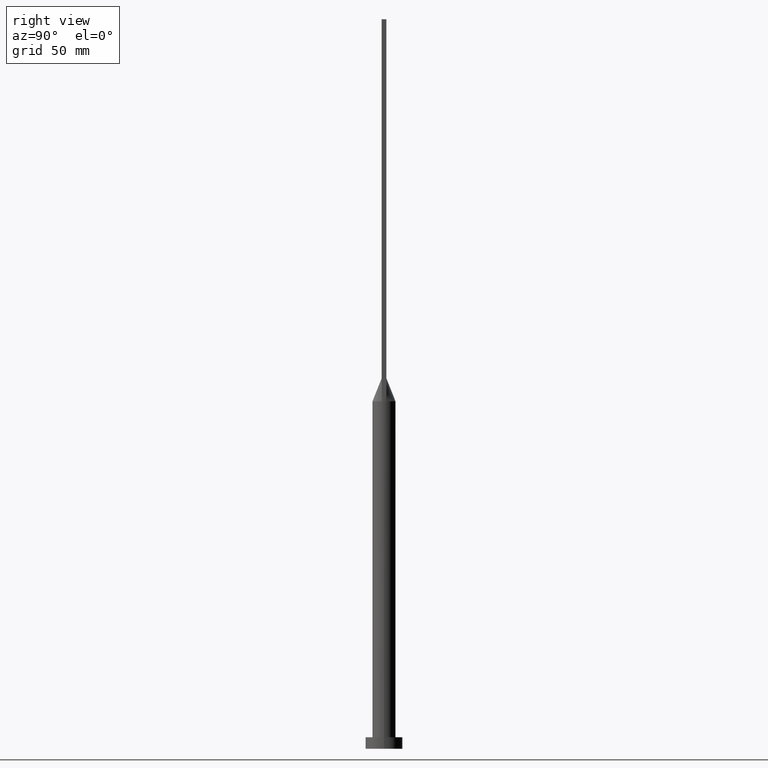
[diagram: clean part render]
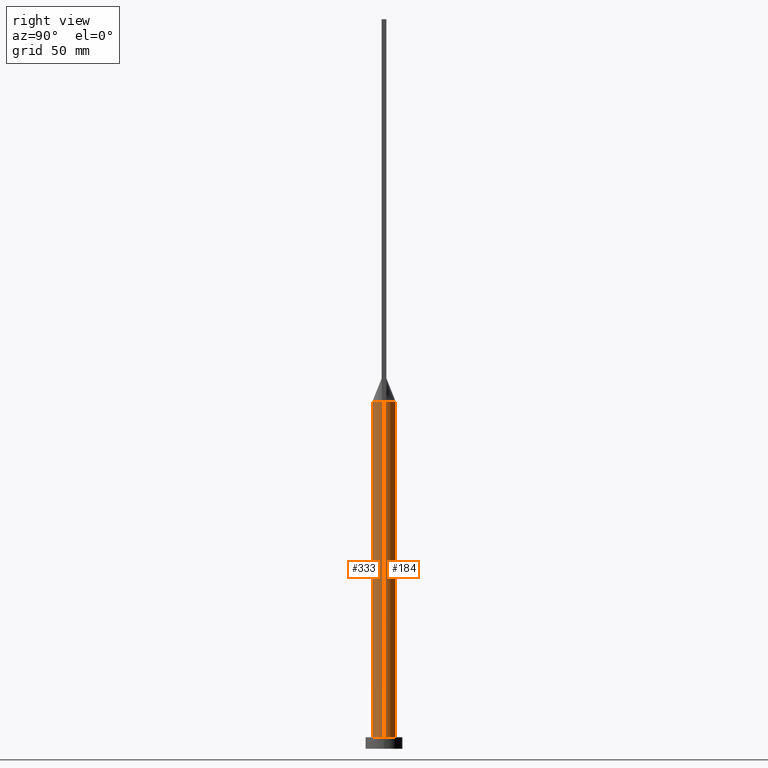
[diagram: same view with one multi-face feature highlighted, each face labeled with its STEP entity id]
A machine part, right view. The highlighted faces form ONE feature: a constant-radius fillet chain: 2 tangent blend faces with common blend radius 5 mm. The faces share edges in the B-rep.
Their STEP definitions:
[1] entity #184 (Cylinder):
#8 = CARTESIAN_POINT ( 'NONE',  ( -2.546422404201597711, 4.351724242187074765, 150.0000000000000284 ) ) ;
#10 = CIRCLE ( 'NONE', #54, 5.000000000000000000 ) ;
#11 = CARTESIAN_POINT ( 'NONE',  ( 4.667610010780610885, 1.859271532507960289, 150.0000000000000284 ) ) ;
#15 = CARTESIAN_POINT ( 'NONE',  ( -1.331739278681919991, 4.830988864699813590, 149.9999999999999432 ) ) ;
#18 = AXIS2_PLACEMENT_3D ( 'NONE', #530, #567, #582 ) ;
#54 = AXIS2_PLACEMENT_3D ( 'NONE', #58, #248, #56 ) ;
#56 = DIRECTION ( 'NONE',  ( 1.000000000000000000, 0.000000000000000000, 0.000000000000000000 ) ) ;
#58 = CARTESIAN_POINT ( 'NONE',  ( 0.000000000000000000, 0.000000000000000000, 150.0000000000000000 ) ) ;
#61 = VERTEX_POINT ( 'NONE', #347 ) ;
#62 = CARTESIAN_POINT ( 'NONE',  ( 5.000000000000000000, 6.123233995736766282E-16, 150.0000000000000000 ) ) ;
#87 = CARTESIAN_POINT ( 'NONE',  ( 4.808752461626938590, 1.429035605956548549, 150.0000000000000000 ) ) ;
#88 = EDGE_CURVE ( 'NONE', #406, #98, #514, .T. ) ;
#98 = VERTEX_POINT ( 'NONE', #337 ) ;
#102 = CARTESIAN_POINT ( 'NONE',  ( -4.808752461626937702, 1.429035605956548771, 150.0000000000000000 ) ) ;
#106 = CARTESIAN_POINT ( 'NONE',  ( 3.067114325249248097, 3.991228734590925864, 150.0000000000000568 ) ) ;
#111 = LINE ( 'NONE', #488, #336 ) ;
#134 = CARTESIAN_POINT ( 'NONE',  ( -1.649264041307594963, 4.731318088779739917, 149.9999999999999716 ) ) ;
#144 = CARTESIAN_POINT ( 'NONE',  ( 4.214142381859630859, 2.735777372109855943, 150.0000000000000568 ) ) ;
#149 = FACE_OUTER_BOUND ( 'NONE', #217, .T. ) ;
#155 = DIRECTION ( 'NONE',  ( 1.000000000000000000, 0.000000000000000000, 0.000000000000000000 ) ) ;
#159 = DIRECTION ( 'NONE',  ( -0.000000000000000000, -0.000000000000000000, -1.000000000000000000 ) ) ;
#160 = DIRECTION ( 'NONE',  ( 0.000000000000000000, 0.000000000000000000, 1.000000000000000000 ) ) ;
#180 = VERTEX_POINT ( 'NONE', #376 ) ;
#183 = ORIENTED_EDGE ( 'NONE', *, *, #463, .F. ) ;
#184 = ADVANCED_FACE ( 'NONE', ( #149 ), #205, .T. ) ;
#193 = CARTESIAN_POINT ( 'NONE',  ( -3.900093280396789819, 3.182195704254724422, 150.0000000000000000 ) ) ;
#195 = AXIS2_PLACEMENT_3D ( 'NONE', #578, #159, #334 ) ;
#196 = CARTESIAN_POINT ( 'NONE',  ( -3.067114325249248097, 3.991228734590924976, 150.0000000000000284 ) ) ;
#205 = CYLINDRICAL_SURFACE ( 'NONE', #195, 5.000000000000000000 ) ;
#217 = EDGE_LOOP ( 'NONE', ( #183, #561, #452, #569, #536, #362 ) ) ;
#228 = CARTESIAN_POINT ( 'NONE',  ( 4.892748924933744803, 1.030052405249211045, 150.0000000000000000 ) ) ;
#248 = DIRECTION ( 'NONE',  ( 0.000000000000000000, 0.000000000000000000, 1.000000000000000000 ) ) ;
#250 = DIRECTION ( 'NONE',  ( -0.000000000000000000, -0.000000000000000000, -1.000000000000000000 ) ) ;
#283 = CARTESIAN_POINT ( 'NONE',  ( -4.214142381859630859, 2.735777372109856387, 150.0000000000000000 ) ) ;
#289 = CARTESIAN_POINT ( 'NONE',  ( 2.546422404201596823, 4.351724242187075653, 150.0000000000000000 ) ) ;
#292 = CARTESIAN_POINT ( 'NONE',  ( -0.3380808736611314869, 4.999999999999999112, 150.0000000000000568 ) ) ;
#295 = VECTOR ( 'NONE', #250, 1000.000000000000000 ) ;
#306 = B_SPLINE_CURVE_WITH_KNOTS ( 'NONE', 3,
 ( #228, #87, #11, #144, #521, #106, #289, #465, #601, #469, #506, #292, #552, #15, #134, #8, #196, #193, #283, #320, #102, #377 ),
 .UNSPECIFIED., .F., .F.,
 ( 4, 2, 2, 2, 2, 2, 2, 2, 2, 2, 4 ),
 ( 0.000000000000000000, 0.1250000000000000278, 0.2500000000000000000, 0.3749999999999999445, 0.4375000000000000000, 0.5000000000000000000, 0.5625000000000000000, 0.6250000000000000000, 0.7500000000000000000, 0.8750000000000001110, 1.000000000000000000 ),
 .UNSPECIFIED. ) ;
#310 = VERTEX_POINT ( 'NONE', #558 ) ;
#316 = VERTEX_POINT ( 'NONE', #408 ) ;
#320 = CARTESIAN_POINT ( 'NONE',  ( -4.667610010780610885, 1.859271532507960067, 150.0000000000000568 ) ) ;
#334 = DIRECTION ( 'NONE',  ( -1.000000000000000000, 0.000000000000000000, 0.000000000000000000 ) ) ;
#336 = VECTOR ( 'NONE', #525, 1000.000000000000000 ) ;
#337 = CARTESIAN_POINT ( 'NONE',  ( -5.000000000000000000, 0.000000000000000000, 5.000000000000000000 ) ) ;
#347 = CARTESIAN_POINT ( 'NONE',  ( -4.892747712986291297, 1.030052143680498133, 150.0000000000000000 ) ) ;
#352 = EDGE_CURVE ( 'NONE', #310, #406, #413, .T. ) ;
#362 = ORIENTED_EDGE ( 'NONE', *, *, #433, .F. ) ;
#376 = CARTESIAN_POINT ( 'NONE',  ( -5.000000000000000888, -2.735102206719564433E-16, 150.0000000000000284 ) ) ;
#377 = CARTESIAN_POINT ( 'NONE',  ( -4.892747712986291297, 1.030052143680498133, 150.0000000000000000 ) ) ;
#406 = VERTEX_POINT ( 'NONE', #565 ) ;
#408 = CARTESIAN_POINT ( 'NONE',  ( 4.892748924933744803, 1.030052405249211045, 150.0000000000000000 ) ) ;
#413 = LINE ( 'NONE', #62, #295 ) ;
#418 = AXIS2_PLACEMENT_3D ( 'NONE', #587, #160, #155 ) ;
#433 = EDGE_CURVE ( 'NONE', #316, #61, #306, .T. ) ;
#452 = ORIENTED_EDGE ( 'NONE', *, *, #88, .T. ) ;
#463 = EDGE_CURVE ( 'NONE', #310, #316, #10, .T. ) ;
#465 = CARTESIAN_POINT ( 'NONE',  ( 1.649264041307594297, 4.731318088779739917, 149.9999999999999432 ) ) ;
#469 = CARTESIAN_POINT ( 'NONE',  ( 0.6760916456145784625, 4.965368365385191218, 150.0000000000000000 ) ) ;
#488 = CARTESIAN_POINT ( 'NONE',  ( -5.000000000000000000, 0.000000000000000000, 150.0000000000000000 ) ) ;
#506 = CARTESIAN_POINT ( 'NONE',  ( 0.3380808736611315979, 4.999999999999999112, 150.0000000000000000 ) ) ;
#514 = CIRCLE ( 'NONE', #18, 5.000000000000000000 ) ;
#521 = CARTESIAN_POINT ( 'NONE',  ( 3.900093280396791151, 3.182195704254724422, 150.0000000000000284 ) ) ;
#525 = DIRECTION ( 'NONE',  ( -0.000000000000000000, -0.000000000000000000, -1.000000000000000000 ) ) ;
#530 = CARTESIAN_POINT ( 'NONE',  ( 0.000000000000000000, 0.000000000000000000, 5.000000000000000000 ) ) ;
#536 = ORIENTED_EDGE ( 'NONE', *, *, #553, .F. ) ;
#552 = CARTESIAN_POINT ( 'NONE',  ( -0.6760916456145782405, 4.965368365385191218, 149.9999999999999716 ) ) ;
#553 = EDGE_CURVE ( 'NONE', #61, #180, #597, .T. ) ;
#558 = CARTESIAN_POINT ( 'NONE',  ( 5.000000000000000888, 3.511115666546218713E-17, 150.0000000000000284 ) ) ;
#561 = ORIENTED_EDGE ( 'NONE', *, *, #352, .T. ) ;
#565 = CARTESIAN_POINT ( 'NONE',  ( 5.000000000000000000, 6.123233995736766282E-16, 5.000000000000000000 ) ) ;
#566 = EDGE_CURVE ( 'NONE', #180, #98, #111, .T. ) ;
#567 = DIRECTION ( 'NONE',  ( 0.000000000000000000, 0.000000000000000000, 1.000000000000000000 ) ) ;
#569 = ORIENTED_EDGE ( 'NONE', *, *, #566, .F. ) ;
#578 = CARTESIAN_POINT ( 'NONE',  ( 0.000000000000000000, 0.000000000000000000, 150.0000000000000000 ) ) ;
#582 = DIRECTION ( 'NONE',  ( 1.000000000000000000, 0.000000000000000000, 0.000000000000000000 ) ) ;
#587 = CARTESIAN_POINT ( 'NONE',  ( 0.000000000000000000, 0.000000000000000000, 150.0000000000000000 ) ) ;
#597 = CIRCLE ( 'NONE', #418, 5.000000000000000000 ) ;
#601 = CARTESIAN_POINT ( 'NONE',  ( 1.331739278681919991, 4.830988864699814478, 149.9999999999999716 ) ) ;
[2] entity #333 (Cylinder):
#16 = DIRECTION ( 'NONE',  ( 1.000000000000000000, 0.000000000000000000, 0.000000000000000000 ) ) ;
#51 = AXIS2_PLACEMENT_3D ( 'NONE', #120, #254, #384 ) ;
#62 = CARTESIAN_POINT ( 'NONE',  ( 5.000000000000000000, 6.123233995736766282E-16, 150.0000000000000000 ) ) ;
#67 = EDGE_CURVE ( 'NONE', #505, #310, #311, .T. ) ;
#70 = EDGE_LOOP ( 'NONE', ( #249, #240, #282, #83, #266, #459 ) ) ;
#83 = ORIENTED_EDGE ( 'NONE', *, *, #112, .F. ) ;
#98 = VERTEX_POINT ( 'NONE', #337 ) ;
#99 = DIRECTION ( 'NONE',  ( -1.000000000000000000, 0.000000000000000000, 0.000000000000000000 ) ) ;
#107 = DIRECTION ( 'NONE',  ( 0.000000000000000000, 0.000000000000000000, 1.000000000000000000 ) ) ;
#111 = LINE ( 'NONE', #488, #336 ) ;
#112 = EDGE_CURVE ( 'NONE', #180, #545, #504, .T. ) ;
#120 = CARTESIAN_POINT ( 'NONE',  ( 0.000000000000000000, 0.000000000000000000, 150.0000000000000000 ) ) ;
#143 = CARTESIAN_POINT ( 'NONE',  ( 0.000000000000000000, 0.000000000000000000, 150.0000000000000000 ) ) ;
#172 = CARTESIAN_POINT ( 'NONE',  ( 0.000000000000000000, 0.000000000000000000, 5.000000000000000000 ) ) ;
#180 = VERTEX_POINT ( 'NONE', #376 ) ;
#182 = DIRECTION ( 'NONE',  ( 0.000000000000000000, 0.000000000000000000, 1.000000000000000000 ) ) ;
#185 = CIRCLE ( 'NONE', #293, 5.000000000000000000 ) ;
#189 = FACE_OUTER_BOUND ( 'NONE', #70, .T. ) ;
#197 = CARTESIAN_POINT ( 'NONE',  ( 0.000000000000000000, 0.000000000000000000, 150.0000000000000000 ) ) ;
#199 = EDGE_CURVE ( 'NONE', #98, #406, #185, .T. ) ;
#215 = AXIS2_PLACEMENT_3D ( 'NONE', #143, #327, #99 ) ;
#219 = DIRECTION ( 'NONE',  ( 1.000000000000000000, 0.000000000000000000, 0.000000000000000000 ) ) ;
#240 = ORIENTED_EDGE ( 'NONE', *, *, #67, .F. ) ;
#243 = CARTESIAN_POINT ( 'NONE',  ( 4.892747712986307285, -1.030052143680505683, 150.0000000000000000 ) ) ;
#247 = AXIS2_PLACEMENT_3D ( 'NONE', #197, #107, #16 ) ;
#249 = ORIENTED_EDGE ( 'NONE', *, *, #352, .F. ) ;
#250 = DIRECTION ( 'NONE',  ( -0.000000000000000000, -0.000000000000000000, -1.000000000000000000 ) ) ;
#254 = DIRECTION ( 'NONE',  ( 0.000000000000000000, 0.000000000000000000, 1.000000000000000000 ) ) ;
#266 = ORIENTED_EDGE ( 'NONE', *, *, #566, .T. ) ;
#282 = ORIENTED_EDGE ( 'NONE', *, *, #542, .F. ) ;
#293 = AXIS2_PLACEMENT_3D ( 'NONE', #172, #182, #219 ) ;
#295 = VECTOR ( 'NONE', #250, 1000.000000000000000 ) ;
#310 = VERTEX_POINT ( 'NONE', #558 ) ;
#311 = CIRCLE ( 'NONE', #51, 5.000000000000000000 ) ;
#327 = DIRECTION ( 'NONE',  ( -0.000000000000000000, -0.000000000000000000, -1.000000000000000000 ) ) ;
#333 = ADVANCED_FACE ( 'NONE', ( #189 ), #371, .T. ) ;
#335 = DIRECTION ( 'NONE',  ( 0.000000000000000000, 0.000000000000000000, 1.000000000000000000 ) ) ;
#336 = VECTOR ( 'NONE', #525, 1000.000000000000000 ) ;
#337 = CARTESIAN_POINT ( 'NONE',  ( -5.000000000000000000, 0.000000000000000000, 5.000000000000000000 ) ) ;
#348 = DIRECTION ( 'NONE',  ( 1.000000000000000000, 0.000000000000000000, 0.000000000000000000 ) ) ;
#352 = EDGE_CURVE ( 'NONE', #310, #406, #413, .T. ) ;
#367 = CIRCLE ( 'NONE', #574, 5.000000000000000000 ) ;
#371 = CYLINDRICAL_SURFACE ( 'NONE', #215, 5.000000000000000000 ) ;
#376 = CARTESIAN_POINT ( 'NONE',  ( -5.000000000000000888, -2.735102206719564433E-16, 150.0000000000000284 ) ) ;
#384 = DIRECTION ( 'NONE',  ( 1.000000000000000000, -9.769962616701377556E-15, 0.000000000000000000 ) ) ;
#406 = VERTEX_POINT ( 'NONE', #565 ) ;
#413 = LINE ( 'NONE', #62, #295 ) ;
#459 = ORIENTED_EDGE ( 'NONE', *, *, #199, .T. ) ;
#488 = CARTESIAN_POINT ( 'NONE',  ( -5.000000000000000000, 0.000000000000000000, 150.0000000000000000 ) ) ;
#504 = CIRCLE ( 'NONE', #247, 5.000000000000000000 ) ;
#505 = VERTEX_POINT ( 'NONE', #243 ) ;
#525 = DIRECTION ( 'NONE',  ( -0.000000000000000000, -0.000000000000000000, -1.000000000000000000 ) ) ;
#527 = CARTESIAN_POINT ( 'NONE',  ( -4.892752739180945554, -1.030053203145257168, 150.0000000000000000 ) ) ;
#542 = EDGE_CURVE ( 'NONE', #545, #505, #367, .T. ) ;
#545 = VERTEX_POINT ( 'NONE', #527 ) ;
#558 = CARTESIAN_POINT ( 'NONE',  ( 5.000000000000000888, 3.511115666546218713E-17, 150.0000000000000284 ) ) ;
#565 = CARTESIAN_POINT ( 'NONE',  ( 5.000000000000000000, 6.123233995736766282E-16, 5.000000000000000000 ) ) ;
#566 = EDGE_CURVE ( 'NONE', #180, #98, #111, .T. ) ;
#572 = CARTESIAN_POINT ( 'NONE',  ( 0.000000000000000000, 0.000000000000000000, 150.0000000000000000 ) ) ;
#574 = AXIS2_PLACEMENT_3D ( 'NONE', #572, #335, #348 ) ;